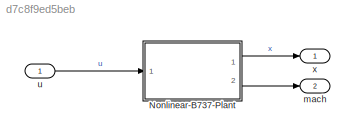
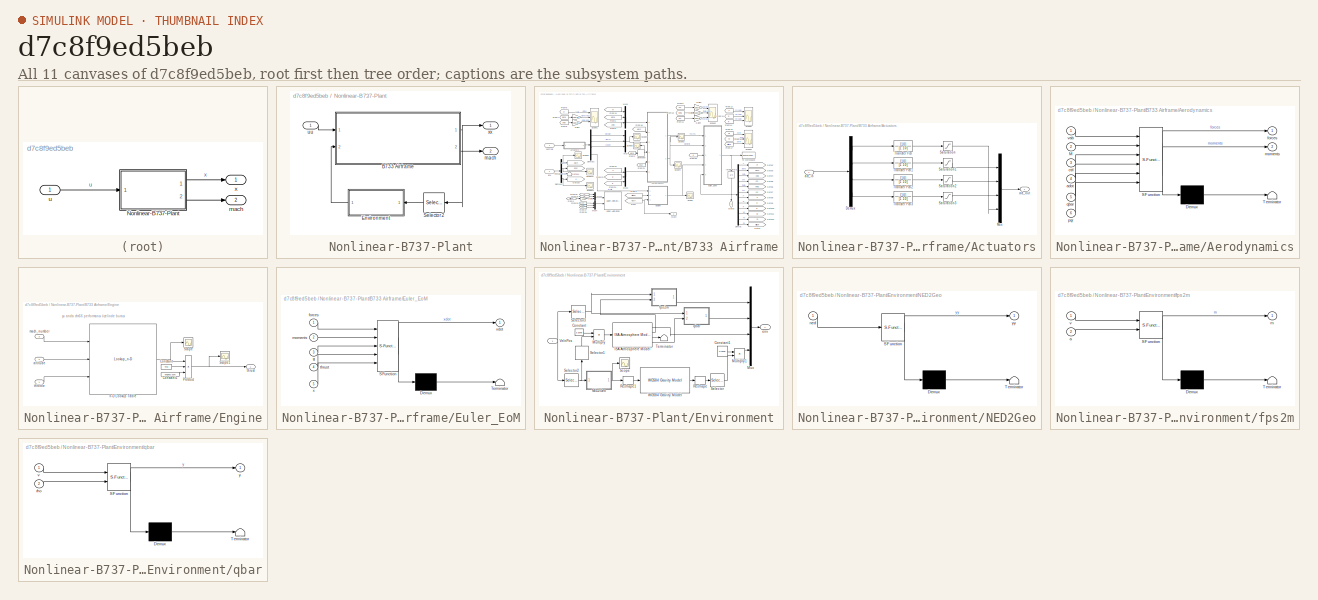
[diagram: thumbnail index - all 11 canvases of the model, root first then tree order]
MODEL slx_d7c8f9ed5beb
KIND model
CONFIG AbsTol = auto
CONFIG EnableMultiTasking = off
CONFIG FixedStep = auto
CONFIG MaxStep = auto
CONFIG MinStep = auto
CONFIG RelTol = 1e-3
CONFIG SampleTimeConstraint = Unconstrained
CONFIG Solver = VariableStepAuto
CONFIG SolverName = VariableStepAuto
CONFIG StartTime = 0.0
CONFIG StopTime = S.simtime
BLOCK [SubSystem] Nonlinear-B737-Plant
  Ports = [1, 2]
  RequestExecContextInheritance = off
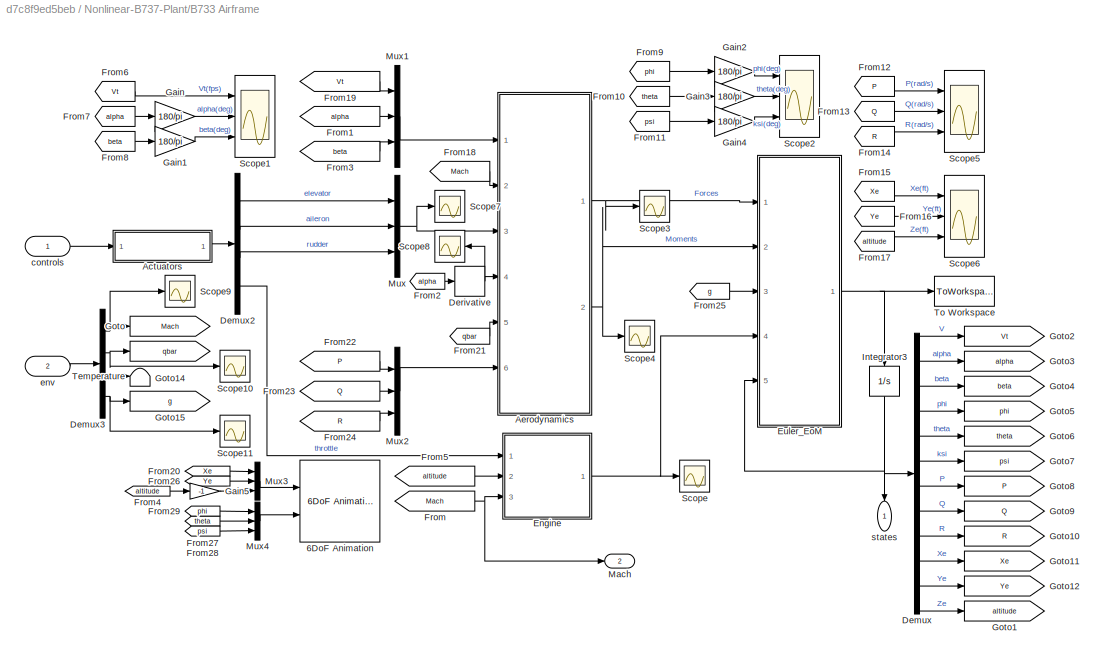
BLOCK [SubSystem] Nonlinear-B737-Plant/B733 Airframe
  Ports = [2, 2]
  RequestExecContextInheritance = off
BLOCK [Reference] Nonlinear-B737-Plant/B733 Airframe/6DoF Animation  REF=aerolibanim/6DoF Animation
  Ports = [2]
  SourceBlock = aerolibanim/6DoF Animation
  SourceProductBaseCode = AE
  SourceProductName = Aerospace Blockset
  SourceType = 6DoF_Animation
BLOCK [SubSystem] Nonlinear-B737-Plant/B733 Airframe/Actuators
  Ports = [1, 1]
  RequestExecContextInheritance = off
BLOCK [Demux] Nonlinear-B737-Plant/B733 Airframe/Actuators/Demux
  DisplayOption = bar
  Ports = [1, 4]
BLOCK [Mux] Nonlinear-B737-Plant/B733 Airframe/Actuators/Mux
  DisplayOption = bar
  Ports = [4, 1]
BLOCK [Saturate] Nonlinear-B737-Plant/B733 Airframe/Actuators/Saturation
  InputPortMap = u0
  LowerLimit = 0
  OutMax = [1]
  OutMin = [0]
  Ports = [1, 1]
  UpperLimit = 1
BLOCK [Saturate] Nonlinear-B737-Plant/B733 Airframe/Actuators/Saturation1
  InputPortMap = u0
  LowerLimit = -0.3
  OutMax = [0.3]
  OutMin = [-0.3]
  Ports = [1, 1]
  UpperLimit = 0.3
BLOCK [Saturate] Nonlinear-B737-Plant/B733 Airframe/Actuators/Saturation2
  InputPortMap = u0
  LowerLimit = -0.35
  OutMax = [0.35]
  OutMin = [-0.35]
  Ports = [1, 1]
  UpperLimit = 0.35
BLOCK [Saturate] Nonlinear-B737-Plant/B733 Airframe/Actuators/Saturation3
  InputPortMap = u0
  LowerLimit = -0.35
  OutMax = [0.35]
  OutMin = [-0.35]
  Ports = [1, 1]
  UpperLimit = 0.35
BLOCK [TransferFcn] Nonlinear-B737-Plant/B733 Airframe/Actuators/Transfer Fcn
  Commented = through
  ContinuousStateAttributes = 'throttle'
  Denominator = [1 10]
  Numerator = [10]
BLOCK [TransferFcn] Nonlinear-B737-Plant/B733 Airframe/Actuators/Transfer Fcn1
  Commented = through
  ContinuousStateAttributes = 'elevator_deflection'
  Denominator = [1 10]
  Numerator = [10]
BLOCK [TransferFcn] Nonlinear-B737-Plant/B733 Airframe/Actuators/Transfer Fcn2
  Commented = through
  ContinuousStateAttributes = 'Aileron_deflection'
  Denominator = [1 10]
  Numerator = [10]
BLOCK [TransferFcn] Nonlinear-B737-Plant/B733 Airframe/Actuators/Transfer Fcn3
  Commented = through
  ContinuousStateAttributes = 'Rudder_deflection'
  Denominator = [1 10]
  Numerator = [10]
BLOCK [Inport] Nonlinear-B737-Plant/B733 Airframe/Actuators/act_in
  IconDisplay = Port number
BLOCK [Outport] Nonlinear-B737-Plant/B733 Airframe/Actuators/act_out
  IconDisplay = Port number
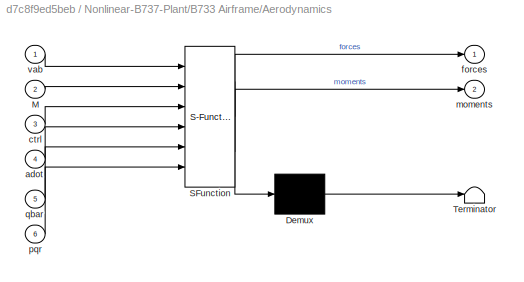
BLOCK [SubSystem] Nonlinear-B737-Plant/B733 Airframe/Aerodynamics
  ErrorFcn = Stateflow.Translate.translate
  PermitHierarchicalResolution = ExplicitOnly
  Ports = [6, 2]
  RequestExecContextInheritance = off
  SFBlockType = MATLAB Function
  TreatAsAtomicUnit = on
BLOCK [Demux] Nonlinear-B737-Plant/B733 Airframe/Aerodynamics/ Demux 
  Outputs = 1
  Ports = [1, 1]
BLOCK [S-Function] Nonlinear-B737-Plant/B733 Airframe/Aerodynamics/ SFunction 
  EnableBusSupport = on
  FunctionName = sf_sfun
  PortCounts = [6 3]
  Ports = [6, 3]
  SFcnIsStateOwnerBlock = off
  SFunctionDeploymentMode = off
  Tag = Stateflow S-Function B733_JSB_R17a 8
BLOCK [Terminator] Nonlinear-B737-Plant/B733 Airframe/Aerodynamics/ Terminator 
BLOCK [Inport] Nonlinear-B737-Plant/B733 Airframe/Aerodynamics/M
  IconDisplay = Port number
  Port = 2
BLOCK [Inport] Nonlinear-B737-Plant/B733 Airframe/Aerodynamics/adot
  IconDisplay = Port number
  Port = 4
BLOCK [Inport] Nonlinear-B737-Plant/B733 Airframe/Aerodynamics/ctrl
  IconDisplay = Port number
  Port = 3
BLOCK [Outport] Nonlinear-B737-Plant/B733 Airframe/Aerodynamics/forces
  IconDisplay = Port number
BLOCK [Outport] Nonlinear-B737-Plant/B733 Airframe/Aerodynamics/moments
  IconDisplay = Port number
  Port = 2
BLOCK [Inport] Nonlinear-B737-Plant/B733 Airframe/Aerodynamics/pqr
  IconDisplay = Port number
  Port = 6
BLOCK [Inport] Nonlinear-B737-Plant/B733 Airframe/Aerodynamics/qbar
  IconDisplay = Port number
  Port = 5
BLOCK [Inport] Nonlinear-B737-Plant/B733 Airframe/Aerodynamics/vab
  IconDisplay = Port number
BLOCK [Demux] Nonlinear-B737-Plant/B733 Airframe/Demux
  DisplayOption = bar
  Outputs = 12
  Ports = [1, 12]
BLOCK [Demux] Nonlinear-B737-Plant/B733 Airframe/Demux2
  DisplayOption = bar
  Ports = [1, 4]
BLOCK [Demux] Nonlinear-B737-Plant/B733 Airframe/Demux3
  DisplayOption = bar
  Ports = [1, 4]
BLOCK [Derivative] Nonlinear-B737-Plant/B733 Airframe/Derivative
BLOCK [SubSystem] Nonlinear-B737-Plant/B733 Airframe/Engine
  Ports = [3, 1]
  RequestExecContextInheritance = off
BLOCK [Constant] Nonlinear-B737-Plant/B733 Airframe/Engine/Constant
  Value = Tmil
BLOCK [Constant] Nonlinear-B737-Plant/B733 Airframe/Engine/Constant1
  Value = engineCount
BLOCK [Product] Nonlinear-B737-Plant/B733 Airframe/Engine/Product
  InputSameDT = off
  Inputs = 3
  OutDataTypeStr = Inherit: Inherit via internal rule
  Ports = [3, 1]
  RndMeth = Floor
  SaturateOnIntegerOverflow = off
BLOCK [Scope] Nonlinear-B737-Plant/B733 Airframe/Engine/Scope
  Floating = off
  NumInputPorts = 1
  Ports = [1]
  ScopeSpecificationString = Simulink.scopes.TimeScopeBlockCfg('CurrentConfiguration', extmgr.ConfigurationSet(extmgr.Configuration('Core','General UI',true),extmgr.Configuration('Core','Source UI',true),extmgr.Configuration('Sources','WiredSimulink',true,'DataLoggingVariableName','ScopeData2'),extmgr.Configuration('Visuals','Time Domain',true,'SerializedDisplays',{struct('MinYLimReal','0.257635','MaxYLimReal','0.257648','YLa...<+1427ch>
BLOCK [Scope] Nonlinear-B737-Plant/B733 Airframe/Engine/Scope1
  Floating = off
  NumInputPorts = 1
  Ports = [1]
  ScopeSpecificationString = Simulink.scopes.TimeScopeBlockCfg('CurrentConfiguration', extmgr.ConfigurationSet(extmgr.Configuration('Core','General UI',true),extmgr.Configuration('Core','Source UI',true),extmgr.Configuration('Sources','WiredSimulink',true,'DataLoggingVariableName','ScopeData1'),extmgr.Configuration('Visuals','Time Domain',true,'SerializedDisplays',{struct('MinYLimReal','10305.40723','MaxYLimReal','10305.90301...<+1442ch>
BLOCK [Inport] Nonlinear-B737-Plant/B733 Airframe/Engine/altitude
  IconDisplay = Port number
  Port = 2
BLOCK [Inport] Nonlinear-B737-Plant/B733 Airframe/Engine/mach_number
  IconDisplay = Port number
  Port = 3
BLOCK [Lookup_n-D] Nonlinear-B737-Plant/B733 Airframe/Engine/n-D Lookup Table
  BreakpointsForDimension1 = [0]
  BreakpointsForDimension1FirstPoint = 0
  BreakpointsForDimension1Spacing = 0.2
  BreakpointsForDimension2 = []
  BreakpointsForDimension2FirstPoint = -10000
  BreakpointsForDimension2Spacing = 10000
  BreakpointsForDimension3 = []
  BreakpointsForDimension3FirstPoint = 0
  BreakpointsSpecification = Even spacing
  InternalRulePriority = Speed
  NumberOfTableDimensions = 3
  Ports = [3, 1]
  RndMeth = Simplest
  Table = engineLUT
BLOCK [Inport] Nonlinear-B737-Plant/B733 Airframe/Engine/throttle
  IconDisplay = Port number
BLOCK [Outport] Nonlinear-B737-Plant/B733 Airframe/Engine/thrust
  IconDisplay = Port number
BLOCK [SubSystem] Nonlinear-B737-Plant/B733 Airframe/Euler_EoM
  ErrorFcn = Stateflow.Translate.translate
  PermitHierarchicalResolution = ExplicitOnly
  Ports = [5, 1]
  RequestExecContextInheritance = off
  SFBlockType = MATLAB Function
  TreatAsAtomicUnit = on
BLOCK [Demux] Nonlinear-B737-Plant/B733 Airframe/Euler_EoM/ Demux 
  Outputs = 1
  Ports = [1, 1]
BLOCK [S-Function] Nonlinear-B737-Plant/B733 Airframe/Euler_EoM/ SFunction 
  EnableBusSupport = on
  FunctionName = sf_sfun
  PortCounts = [5 2]
  Ports = [5, 2]
  SFcnIsStateOwnerBlock = off
  SFunctionDeploymentMode = off
  Tag = Stateflow S-Function B733_JSB_R17a 4
BLOCK [Terminator] Nonlinear-B737-Plant/B733 Airframe/Euler_EoM/ Terminator 
BLOCK [Inport] Nonlinear-B737-Plant/B733 Airframe/Euler_EoM/forces
  IconDisplay = Port number
BLOCK [Inport] Nonlinear-B737-Plant/B733 Airframe/Euler_EoM/g
  IconDisplay = Port number
  Port = 3
BLOCK [Inport] Nonlinear-B737-Plant/B733 Airframe/Euler_EoM/moments
  IconDisplay = Port number
  Port = 2
BLOCK [Inport] Nonlinear-B737-Plant/B733 Airframe/Euler_EoM/thrust
  IconDisplay = Port number
  Port = 4
BLOCK [Inport] Nonlinear-B737-Plant/B733 Airframe/Euler_EoM/x
  IconDisplay = Port number
  Port = 5
BLOCK [Outport] Nonlinear-B737-Plant/B733 Airframe/Euler_EoM/xdot
  IconDisplay = Port number
BLOCK [From] Nonlinear-B737-Plant/B733 Airframe/From
  GotoTag = Mach
BLOCK [From] Nonlinear-B737-Plant/B733 Airframe/From1
  GotoTag = alpha
BLOCK [From] Nonlinear-B737-Plant/B733 Airframe/From10
  GotoTag = theta
BLOCK [From] Nonlinear-B737-Plant/B733 Airframe/From11
  GotoTag = psi
BLOCK [From] Nonlinear-B737-Plant/B733 Airframe/From12
  GotoTag = P
BLOCK [From] Nonlinear-B737-Plant/B733 Airframe/From13
  GotoTag = Q
BLOCK [From] Nonlinear-B737-Plant/B733 Airframe/From14
  GotoTag = R
BLOCK [From] Nonlinear-B737-Plant/B733 Airframe/From15
  GotoTag = Xe
BLOCK [From] Nonlinear-B737-Plant/B733 Airframe/From16
  GotoTag = Ye
BLOCK [From] Nonlinear-B737-Plant/B733 Airframe/From17
  GotoTag = altitude
BLOCK [From] Nonlinear-B737-Plant/B733 Airframe/From18
  GotoTag = Mach
BLOCK [From] Nonlinear-B737-Plant/B733 Airframe/From19
  GotoTag = Vt
BLOCK [From] Nonlinear-B737-Plant/B733 Airframe/From2
  GotoTag = alpha
BLOCK [From] Nonlinear-B737-Plant/B733 Airframe/From20
  GotoTag = Xe
BLOCK [From] Nonlinear-B737-Plant/B733 Airframe/From21
  GotoTag = qbar
BLOCK [From] Nonlinear-B737-Plant/B733 Airframe/From22
  GotoTag = P
BLOCK [From] Nonlinear-B737-Plant/B733 Airframe/From23
  GotoTag = Q
BLOCK [From] Nonlinear-B737-Plant/B733 Airframe/From24
  GotoTag = R
BLOCK [From] Nonlinear-B737-Plant/B733 Airframe/From25
  GotoTag = g
BLOCK [From] Nonlinear-B737-Plant/B733 Airframe/From26
  GotoTag = Ye
BLOCK [From] Nonlinear-B737-Plant/B733 Airframe/From27
  GotoTag = theta
BLOCK [From] Nonlinear-B737-Plant/B733 Airframe/From28
  GotoTag = psi
BLOCK [From] Nonlinear-B737-Plant/B733 Airframe/From29
  GotoTag = phi
BLOCK [From] Nonlinear-B737-Plant/B733 Airframe/From3
  GotoTag = beta
BLOCK [From] Nonlinear-B737-Plant/B733 Airframe/From4
  GotoTag = altitude
BLOCK [From] Nonlinear-B737-Plant/B733 Airframe/From5
  GotoTag = altitude
BLOCK [From] Nonlinear-B737-Plant/B733 Airframe/From6
  GotoTag = Vt
BLOCK [From] Nonlinear-B737-Plant/B733 Airframe/From7
  GotoTag = alpha
BLOCK [From] Nonlinear-B737-Plant/B733 Airframe/From8
  GotoTag = beta
BLOCK [From] Nonlinear-B737-Plant/B733 Airframe/From9
  GotoTag = phi
BLOCK [Gain] Nonlinear-B737-Plant/B733 Airframe/Gain
  Gain = 180/pi
  OutDataTypeStr = Inherit: Inherit via internal rule
  ParamDataTypeStr = Inherit: Inherit via internal rule
  SaturateOnIntegerOverflow = off
BLOCK [Gain] Nonlinear-B737-Plant/B733 Airframe/Gain1
  Gain = 180/pi
  OutDataTypeStr = Inherit: Inherit via internal rule
  ParamDataTypeStr = Inherit: Inherit via internal rule
  SaturateOnIntegerOverflow = off
BLOCK [Gain] Nonlinear-B737-Plant/B733 Airframe/Gain2
  Gain = 180/pi
  OutDataTypeStr = Inherit: Inherit via internal rule
  ParamDataTypeStr = Inherit: Inherit via internal rule
  SaturateOnIntegerOverflow = off
BLOCK [Gain] Nonlinear-B737-Plant/B733 Airframe/Gain3
  Gain = 180/pi
  OutDataTypeStr = Inherit: Inherit via internal rule
  ParamDataTypeStr = Inherit: Inherit via internal rule
  SaturateOnIntegerOverflow = off
BLOCK [Gain] Nonlinear-B737-Plant/B733 Airframe/Gain4
  Gain = 180/pi
  OutDataTypeStr = Inherit: Inherit via internal rule
  ParamDataTypeStr = Inherit: Inherit via internal rule
  SaturateOnIntegerOverflow = off
BLOCK [Gain] Nonlinear-B737-Plant/B733 Airframe/Gain5
  Gain = -1
  OutDataTypeStr = Inherit: Inherit via internal rule
  ParamDataTypeStr = Inherit: Inherit via internal rule
  SaturateOnIntegerOverflow = off
BLOCK [Goto] Nonlinear-B737-Plant/B733 Airframe/Goto
  GotoTag = Mach
BLOCK [Goto] Nonlinear-B737-Plant/B733 Airframe/Goto1
  GotoTag = altitude
BLOCK [Goto] Nonlinear-B737-Plant/B733 Airframe/Goto10
  GotoTag = R
BLOCK [Goto] Nonlinear-B737-Plant/B733 Airframe/Goto11
  GotoTag = Xe
BLOCK [Goto] Nonlinear-B737-Plant/B733 Airframe/Goto12
  GotoTag = Ye
BLOCK [Goto] Nonlinear-B737-Plant/B733 Airframe/Goto14
  GotoTag = qbar
BLOCK [Goto] Nonlinear-B737-Plant/B733 Airframe/Goto15
  GotoTag = g
BLOCK [Goto] Nonlinear-B737-Plant/B733 Airframe/Goto2
  GotoTag = Vt
BLOCK [Goto] Nonlinear-B737-Plant/B733 Airframe/Goto3
  GotoTag = alpha
BLOCK [Goto] Nonlinear-B737-Plant/B733 Airframe/Goto4
  GotoTag = beta
BLOCK [Goto] Nonlinear-B737-Plant/B733 Airframe/Goto5
  GotoTag = phi
BLOCK [Goto] Nonlinear-B737-Plant/B733 Airframe/Goto6
  GotoTag = theta
BLOCK [Goto] Nonlinear-B737-Plant/B733 Airframe/Goto7
  GotoTag = psi
BLOCK [Goto] Nonlinear-B737-Plant/B733 Airframe/Goto8
  GotoTag = P
BLOCK [Goto] Nonlinear-B737-Plant/B733 Airframe/Goto9
  GotoTag = Q
BLOCK [Integrator] Nonlinear-B737-Plant/B733 Airframe/Integrator3
  ContinuousStateAttributes = {'V', 'alpha', 'beta', 'phi', 'theta', 'psi', 'p', 'q', 'r', 'n', 'e', 'd'}
  InitialCondition = S.xu
  Ports = [1, 1]
BLOCK [Outport] Nonlinear-B737-Plant/B733 Airframe/Mach 
  IconDisplay = Port number
  Port = 2
BLOCK [Mux] Nonlinear-B737-Plant/B733 Airframe/Mux
  DisplayOption = bar
  Inputs = 3
  Ports = [3, 1]
BLOCK [Mux] Nonlinear-B737-Plant/B733 Airframe/Mux1
  DisplayOption = bar
  Inputs = 3
  Ports = [3, 1]
BLOCK [Mux] Nonlinear-B737-Plant/B733 Airframe/Mux2
  DisplayOption = bar
  Inputs = 3
  Ports = [3, 1]
BLOCK [Mux] Nonlinear-B737-Plant/B733 Airframe/Mux3
  DisplayOption = bar
  Inputs = 3
  Ports = [3, 1]
BLOCK [Mux] Nonlinear-B737-Plant/B733 Airframe/Mux4
  DisplayOption = bar
  Inputs = 3
  Ports = [3, 1]
BLOCK [Scope] Nonlinear-B737-Plant/B733 Airframe/Scope
  Floating = off
  NumInputPorts = 1
  Ports = [1]
  ScopeSpecificationString = Simulink.scopes.TimeScopeBlockCfg('CurrentConfiguration', extmgr.ConfigurationSet(extmgr.Configuration('Core','General UI',true),extmgr.Configuration('Core','Source UI',true),extmgr.Configuration('Sources','WiredSimulink',true,'DataLoggingVariableName','ScopeData1'),extmgr.Configuration('Visuals','Time Domain',true,'SerializedDisplays',{struct('MinYLimReal','10393.88334','MaxYLimReal','11154.47335...<+1466ch>
BLOCK [Scope] Nonlinear-B737-Plant/B733 Airframe/Scope1
  Floating = off
  NumInputPorts = 3
  Ports = [3]
  ScopeSpecificationString = Simulink.scopes.TimeScopeBlockCfg('CurrentConfiguration', extmgr.ConfigurationSet(extmgr.Configuration('Core','General UI',true),extmgr.Configuration('Core','Source UI',true),extmgr.Configuration('Sources','WiredSimulink',true,'DataLoggingVariableName','ScopeData1'),extmgr.Configuration('Visuals','Time Domain',true,'SerializedDisplays',{struct('MinYLimReal','496.86866','MaxYLimReal','791.85583','Y...<+2813ch>
BLOCK [Scope] Nonlinear-B737-Plant/B733 Airframe/Scope10
  Floating = off
  NumInputPorts = 1
  Ports = [1]
  ScopeSpecificationString = Simulink.scopes.TimeScopeBlockCfg('CurrentConfiguration', extmgr.ConfigurationSet(extmgr.Configuration('Core','General UI',true),extmgr.Configuration('Core','Source UI',true),extmgr.Configuration('Sources','WiredSimulink',true,'DataLoggingVariableName','ScopeData3'),extmgr.Configuration('Visuals','Time Domain',true,'SerializedDisplays',{struct('MinYLimReal','344.50416','MaxYLimReal','371.54763','Y...<+1452ch>
BLOCK [Scope] Nonlinear-B737-Plant/B733 Airframe/Scope11
  Floating = off
  NumInputPorts = 1
  Ports = [1]
  ScopeSpecificationString = Simulink.scopes.TimeScopeBlockCfg('CurrentConfiguration', extmgr.ConfigurationSet(extmgr.Configuration('Core','General UI',true),extmgr.Configuration('Core','Source UI',true),extmgr.Configuration('Sources','WiredSimulink',true,'DataLoggingVariableName','ScopeData4'),extmgr.Configuration('Visuals','Time Domain',true,'SerializedDisplays',{struct('MinYLimReal','9.78167','MaxYLimReal','9.8028','YLabel...<+1432ch>
BLOCK [Scope] Nonlinear-B737-Plant/B733 Airframe/Scope2
  Floating = off
  NumInputPorts = 3
  Ports = [3]
  ScopeSpecificationString = Simulink.scopes.TimeScopeBlockCfg('CurrentConfiguration', extmgr.ConfigurationSet(extmgr.Configuration('Core','General UI',true),extmgr.Configuration('Core','Source UI',true),extmgr.Configuration('Sources','WiredSimulink',true,'DataLoggingVariableName','ScopeData2'),extmgr.Configuration('Visuals','Time Domain',true,'SerializedDisplays',{struct('MinYLimReal','-80.03038','MaxYLimReal','56.32435','YL...<+1468ch>
BLOCK [Scope] Nonlinear-B737-Plant/B733 Airframe/Scope3
  Floating = off
  NumInputPorts = 1
  Ports = [1]
  ScopeSpecificationString = Simulink.scopes.TimeScopeBlockCfg('CurrentConfiguration', extmgr.ConfigurationSet(extmgr.Configuration('Core','General UI',true),extmgr.Configuration('Core','Source UI',true),extmgr.Configuration('Sources','WiredSimulink',true,'DataLoggingVariableName','ScopeData1'),extmgr.Configuration('Visuals','Time Domain',true,'SerializedDisplays',{struct('MinYLimReal','-107447.48448','MaxYLimReal','1889.5317...<+1469ch>
BLOCK [Scope] Nonlinear-B737-Plant/B733 Airframe/Scope4
  Floating = off
  NumInputPorts = 1
  Ports = [1]
  ScopeSpecificationString = Simulink.scopes.TimeScopeBlockCfg('CurrentConfiguration', extmgr.ConfigurationSet(extmgr.Configuration('Core','General UI',true),extmgr.Configuration('Core','Source UI',true),extmgr.Configuration('Sources','WiredSimulink',true,'DataLoggingVariableName','ScopeData1'),extmgr.Configuration('Visuals','Time Domain',true,'SerializedDisplays',{struct('MinYLimReal','-752.56444','MaxYLimReal','1098.90347',...<+1481ch>
BLOCK [Scope] Nonlinear-B737-Plant/B733 Airframe/Scope5
  Floating = off
  NumInputPorts = 3
  Ports = [3]
  ScopeSpecificationString = Simulink.scopes.TimeScopeBlockCfg('CurrentConfiguration', extmgr.ConfigurationSet(extmgr.Configuration('Core','General UI',true),extmgr.Configuration('Core','Source UI',true),extmgr.Configuration('Sources','WiredSimulink',true,'DataLoggingVariableName','ScopeData5'),extmgr.Configuration('Visuals','Time Domain',true,'SerializedDisplays',{struct('MinYLimReal','-0.00038','MaxYLimReal','0.00044','YLab...<+1464ch>
BLOCK [Scope] Nonlinear-B737-Plant/B733 Airframe/Scope6
  Floating = off
  NumInputPorts = 3
  Ports = [3]
  ScopeSpecificationString = Simulink.scopes.TimeScopeBlockCfg('CurrentConfiguration', extmgr.ConfigurationSet(extmgr.Configuration('Core','General UI',true),extmgr.Configuration('Core','Source UI',true),extmgr.Configuration('Sources','WiredSimulink',true,'DataLoggingVariableName','ScopeData6'),extmgr.Configuration('Visuals','Time Domain',true,'SerializedDisplays',{struct('MinYLimReal','-14855.63915','MaxYLimReal','133700.752...<+2777ch>
BLOCK [Scope] Nonlinear-B737-Plant/B733 Airframe/Scope7
  Floating = off
  NumInputPorts = 1
  Ports = [1]
  ScopeSpecificationString = Simulink.scopes.TimeScopeBlockCfg('CurrentConfiguration', extmgr.ConfigurationSet(extmgr.Configuration('Core','General UI',true),extmgr.Configuration('Core','Source UI',true),extmgr.Configuration('Sources','WiredSimulink',true,'DataLoggingVariableName','ScopeData1'),extmgr.Configuration('Visuals','Time Domain',true,'SerializedDisplays',{struct('MinYLimReal','-0.01756','MaxYLimReal','-0.01646','YLa...<+1570ch>
BLOCK [Scope] Nonlinear-B737-Plant/B733 Airframe/Scope8
  Floating = off
  NumInputPorts = 1
  Ports = [1]
  ScopeSpecificationString = Simulink.scopes.TimeScopeBlockCfg('CurrentConfiguration', extmgr.ConfigurationSet(extmgr.Configuration('Core','General UI',true),extmgr.Configuration('Core','Source UI',true),extmgr.Configuration('Sources','WiredSimulink',true,'DataLoggingVariableName','ScopeData1'),extmgr.Configuration('Visuals','Time Domain',true,'SerializedDisplays',{struct('MinYLimReal','-0.00423','MaxYLimReal','0.00503','YLab...<+1440ch>
BLOCK [Scope] Nonlinear-B737-Plant/B733 Airframe/Scope9
  Floating = off
  NumInputPorts = 1
  Ports = [1]
  ScopeSpecificationString = Simulink.scopes.TimeScopeBlockCfg('CurrentConfiguration', extmgr.ConfigurationSet(extmgr.Configuration('Core','General UI',true),extmgr.Configuration('Core','Source UI',true),extmgr.Configuration('Sources','WiredSimulink',true,'DataLoggingVariableName','ScopeData2'),extmgr.Configuration('Visuals','Time Domain',true,'SerializedDisplays',{struct('MinYLimReal','0.57423','MaxYLimReal','0.57917','YLabe...<+1365ch>
BLOCK [Terminator] Nonlinear-B737-Plant/B733 Airframe/Temperature
BLOCK [ToWorkspace] Nonlinear-B737-Plant/B733 Airframe/To Workspace
  FixptAsFi = on
  MaxDataPoints = inf
  Ports = [1]
  SampleTime = -1
  Save2DSignal = 3-D array (concatenate along third dimension)
  VariableName = simout
BLOCK [Inport] Nonlinear-B737-Plant/B733 Airframe/controls
  IconDisplay = Port number
BLOCK [Inport] Nonlinear-B737-Plant/B733 Airframe/env
  IconDisplay = Port number
  Port = 2
BLOCK [Outport] Nonlinear-B737-Plant/B733 Airframe/states
  IconDisplay = Port number
BLOCK [SubSystem] Nonlinear-B737-Plant/Environment
  Ports = [1, 1]
  RequestExecContextInheritance = off
BLOCK [Constant] Nonlinear-B737-Plant/Environment/Constant
  Value = 0.3048
BLOCK [Constant] Nonlinear-B737-Plant/Environment/Constant1
  Value = 0.3048
BLOCK [Reference] Nonlinear-B737-Plant/Environment/ISA Atmosphere Model  REF=aerolibatmos2/ISA Atmosphere Model
  Ports = [1, 4]
  SourceBlock = aerolibatmos2/ISA Atmosphere Model
  SourceProductBaseCode = AE
  SourceProductName = Aerospace Blockset
  SourceType = International Standard Atmosphere Model
BLOCK [Product] Nonlinear-B737-Plant/Environment/Multiply
  InputSameDT = off
  OutDataTypeStr = Inherit: Inherit via internal rule
  Ports = [2, 1]
  RndMeth = Floor
  SaturateOnIntegerOverflow = off
BLOCK [Product] Nonlinear-B737-Plant/Environment/Multiply1
  InputSameDT = off
  OutDataTypeStr = Inherit: Inherit via internal rule
  Ports = [2, 1]
  RndMeth = Floor
  SaturateOnIntegerOverflow = off
BLOCK [Mux] Nonlinear-B737-Plant/Environment/Mux
  DisplayOption = bar
  Ports = [4, 1]
BLOCK [SubSystem] Nonlinear-B737-Plant/Environment/NED2Geo
  ErrorFcn = Stateflow.Translate.translate
  PermitHierarchicalResolution = ExplicitOnly
  Ports = [1, 1]
  RequestExecContextInheritance = off
  SFBlockType = MATLAB Function
  TreatAsAtomicUnit = on
BLOCK [Demux] Nonlinear-B737-Plant/Environment/NED2Geo/ Demux 
  Outputs = 1
  Ports = [1, 1]
BLOCK [S-Function] Nonlinear-B737-Plant/Environment/NED2Geo/ SFunction 
  EnableBusSupport = on
  FunctionName = sf_sfun
  PortCounts = [1 2]
  Ports = [1, 2]
  SFcnIsStateOwnerBlock = off
  SFunctionDeploymentMode = off
  Tag = Stateflow S-Function B733_JSB_R17a 3
BLOCK [Terminator] Nonlinear-B737-Plant/Environment/NED2Geo/ Terminator 
BLOCK [Inport] Nonlinear-B737-Plant/Environment/NED2Geo/ned
  IconDisplay = Port number
BLOCK [Outport] Nonlinear-B737-Plant/Environment/NED2Geo/yy
  IconDisplay = Port number
BLOCK [Reshape] Nonlinear-B737-Plant/Environment/Reshape
  Ports = [1, 1]
BLOCK [Reshape] Nonlinear-B737-Plant/Environment/Reshape1
  OutputDimensionality = Customize
  OutputDimensions = [1,3]
  Ports = [1, 1]
BLOCK [Scope] Nonlinear-B737-Plant/Environment/Scope
  Floating = off
  NumInputPorts = 1
  Ports = [1]
  ScopeSpecificationString = Simulink.scopes.TimeScopeBlockCfg('CurrentConfiguration', extmgr.ConfigurationSet(extmgr.Configuration('Core','General UI',true),extmgr.Configuration('Core','Source UI',true),extmgr.Configuration('Sources','WiredSimulink',true,'DataLoggingVariableName','ScopeData5'),extmgr.Configuration('Visuals','Time Domain',true,'SerializedDisplays',{struct('MinYLimReal','40.04841','MaxYLimReal','42.15089','YLa...<+1444ch>
BLOCK [Selector] Nonlinear-B737-Plant/Environment/Selector
  IndexOptions = Index vector (dialog)
  Indices = [3]
  InputPortWidth = 3
  OutputSizes = 1
  Ports = [1, 1]
BLOCK [Selector] Nonlinear-B737-Plant/Environment/Selector1
  IndexOptions = Index vector (dialog)
  Indices = [3]
  InputPortWidth = 3
  OutputSizes = 1
  Ports = [1, 1]
BLOCK [Selector] Nonlinear-B737-Plant/Environment/Selector2
  IndexOptions = Index vector (dialog)
  Indices = [2 3 4]
  InputPortWidth = 4
  OutputSizes = 1
  Ports = [1, 1]
BLOCK [Selector] Nonlinear-B737-Plant/Environment/Selector3
  IndexOptions = Index vector (dialog)
  Indices = [1]
  InputPortWidth = 4
  OutputSizes = 1
  Ports = [1, 1]
BLOCK [Terminator] Nonlinear-B737-Plant/Environment/Terminator
BLOCK [Inport] Nonlinear-B737-Plant/Environment/VelnPos
  IconDisplay = Port number
BLOCK [Reference] Nonlinear-B737-Plant/Environment/WGS84 Gravity Model    REF=aerolibgravity2/WGS84 Gravity Model 
  Ports = [1, 1]
  SourceBlock = aerolibgravity2/WGS84 Gravity Model
  SourceProductBaseCode = AE
  SourceProductName = Aerospace Blockset
  SourceType = WGS84 Gravity Model 3D
  units = English
BLOCK [Outport] Nonlinear-B737-Plant/Environment/env
  IconDisplay = Port number
BLOCK [SubSystem] Nonlinear-B737-Plant/Environment/fps2m
  ErrorFcn = Stateflow.Translate.translate
  PermitHierarchicalResolution = ExplicitOnly
  Ports = [2, 1]
  RequestExecContextInheritance = off
  SFBlockType = MATLAB Function
  TreatAsAtomicUnit = on
BLOCK [Demux] Nonlinear-B737-Plant/Environment/fps2m/ Demux 
  Outputs = 1
  Ports = [1, 1]
BLOCK [S-Function] Nonlinear-B737-Plant/Environment/fps2m/ SFunction 
  EnableBusSupport = on
  FunctionName = sf_sfun
  PortCounts = [2 2]
  Ports = [2, 2]
  SFcnIsStateOwnerBlock = off
  SFunctionDeploymentMode = off
  Tag = Stateflow S-Function B733_JSB_R17a 5
BLOCK [Terminator] Nonlinear-B737-Plant/Environment/fps2m/ Terminator 
BLOCK [Inport] Nonlinear-B737-Plant/Environment/fps2m/a
  IconDisplay = Port number
  Port = 2
BLOCK [Outport] Nonlinear-B737-Plant/Environment/fps2m/m
  IconDisplay = Port number
BLOCK [Inport] Nonlinear-B737-Plant/Environment/fps2m/v
  IconDisplay = Port number
BLOCK [SubSystem] Nonlinear-B737-Plant/Environment/qbar
  ErrorFcn = Stateflow.Translate.translate
  PermitHierarchicalResolution = ExplicitOnly
  Ports = [2, 1]
  RequestExecContextInheritance = off
  SFBlockType = MATLAB Function
  TreatAsAtomicUnit = on
BLOCK [Demux] Nonlinear-B737-Plant/Environment/qbar/ Demux 
  Outputs = 1
  Ports = [1, 1]
BLOCK [S-Function] Nonlinear-B737-Plant/Environment/qbar/ SFunction 
  EnableBusSupport = on
  FunctionName = sf_sfun
  PortCounts = [2 2]
  Ports = [2, 2]
  SFcnIsStateOwnerBlock = off
  SFunctionDeploymentMode = off
  Tag = Stateflow S-Function B733_JSB_R17a 6
BLOCK [Terminator] Nonlinear-B737-Plant/Environment/qbar/ Terminator 
BLOCK [Inport] Nonlinear-B737-Plant/Environment/qbar/rho
  IconDisplay = Port number
  Port = 2
BLOCK [Inport] Nonlinear-B737-Plant/Environment/qbar/v
  IconDisplay = Port number
BLOCK [Outport] Nonlinear-B737-Plant/Environment/qbar/y
  IconDisplay = Port number
BLOCK [Selector] Nonlinear-B737-Plant/Selector2
  IndexOptions = Index vector (dialog)
  Indices = [1 10 11 12]
  InputPortWidth = 12
  OutputSizes = 1
  Ports = [1, 1]
BLOCK [Outport] Nonlinear-B737-Plant/mach
  IconDisplay = Port number
  Port = 2
BLOCK [Inport] Nonlinear-B737-Plant/uu
  IconDisplay = Port number
BLOCK [Outport] Nonlinear-B737-Plant/xx
  IconDisplay = Port number
BLOCK [Outport] mach
  IconDisplay = Port number
  Port = 2
BLOCK [Inport] u
  IconDisplay = Port number
BLOCK [Outport] x
  IconDisplay = Port number
ANNOTATION Nonlinear-B737-Plant/B733 Airframe/Engine: şu anda cfm56 performansı özelinde burası
LINE Nonlinear-B737-Plant/B733 Airframe/Actuators/Demux:1 -> Nonlinear-B737-Plant/B733 Airframe/Actuators/Transfer Fcn:1
LINE Nonlinear-B737-Plant/B733 Airframe/Actuators/Demux:2 -> Nonlinear-B737-Plant/B733 Airframe/Actuators/Transfer Fcn1:1
LINE Nonlinear-B737-Plant/B733 Airframe/Actuators/Demux:3 -> Nonlinear-B737-Plant/B733 Airframe/Actuators/Transfer Fcn2:1
LINE Nonlinear-B737-Plant/B733 Airframe/Actuators/Demux:4 -> Nonlinear-B737-Plant/B733 Airframe/Actuators/Transfer Fcn3:1
LINE Nonlinear-B737-Plant/B733 Airframe/Actuators/Mux:1 -> Nonlinear-B737-Plant/B733 Airframe/Actuators/act_out:1
LINE Nonlinear-B737-Plant/B733 Airframe/Actuators/Saturation1:1 -> Nonlinear-B737-Plant/B733 Airframe/Actuators/Mux:1
LINE Nonlinear-B737-Plant/B733 Airframe/Actuators/Saturation2:1 -> Nonlinear-B737-Plant/B733 Airframe/Actuators/Mux:2
LINE Nonlinear-B737-Plant/B733 Airframe/Actuators/Saturation3:1 -> Nonlinear-B737-Plant/B733 Airframe/Actuators/Mux:3
LINE Nonlinear-B737-Plant/B733 Airframe/Actuators/Saturation:1 -> Nonlinear-B737-Plant/B733 Airframe/Actuators/Mux:4
LINE Nonlinear-B737-Plant/B733 Airframe/Actuators/Transfer Fcn1:1 -> Nonlinear-B737-Plant/B733 Airframe/Actuators/Saturation1:1
LINE Nonlinear-B737-Plant/B733 Airframe/Actuators/Transfer Fcn2:1 -> Nonlinear-B737-Plant/B733 Airframe/Actuators/Saturation2:1
LINE Nonlinear-B737-Plant/B733 Airframe/Actuators/Transfer Fcn3:1 -> Nonlinear-B737-Plant/B733 Airframe/Actuators/Saturation3:1
LINE Nonlinear-B737-Plant/B733 Airframe/Actuators/Transfer Fcn:1 -> Nonlinear-B737-Plant/B733 Airframe/Actuators/Saturation:1
LINE Nonlinear-B737-Plant/B733 Airframe/Actuators/act_in:1 -> Nonlinear-B737-Plant/B733 Airframe/Actuators/Demux:1
LINE Nonlinear-B737-Plant/B733 Airframe/Actuators:1 -> Nonlinear-B737-Plant/B733 Airframe/Demux2:1
NET Nonlinear-B737-Plant/B733 Airframe/Aerodynamics:1 -> Nonlinear-B737-Plant/B733 Airframe/Euler_EoM:1, Nonlinear-B737-Plant/B733 Airframe/Scope3:1
NET Nonlinear-B737-Plant/B733 Airframe/Aerodynamics:2 -> Nonlinear-B737-Plant/B733 Airframe/Euler_EoM:2, Nonlinear-B737-Plant/B733 Airframe/Scope4:1
LINE Nonlinear-B737-Plant/B733 Airframe/Demux2:1 -> Nonlinear-B737-Plant/B733 Airframe/Mux:1
LINE Nonlinear-B737-Plant/B733 Airframe/Demux2:2 -> Nonlinear-B737-Plant/B733 Airframe/Mux:2
LINE Nonlinear-B737-Plant/B733 Airframe/Demux2:3 -> Nonlinear-B737-Plant/B733 Airframe/Mux:3
LINE Nonlinear-B737-Plant/B733 Airframe/Demux2:4 -> Nonlinear-B737-Plant/B733 Airframe/Engine:1
NET Nonlinear-B737-Plant/B733 Airframe/Demux3:1 -> Nonlinear-B737-Plant/B733 Airframe/Goto:1, Nonlinear-B737-Plant/B733 Airframe/Scope9:1
NET Nonlinear-B737-Plant/B733 Airframe/Demux3:2 -> Nonlinear-B737-Plant/B733 Airframe/Goto14:1, Nonlinear-B737-Plant/B733 Airframe/Scope10:1
LINE Nonlinear-B737-Plant/B733 Airframe/Demux3:3 -> Nonlinear-B737-Plant/B733 Airframe/Temperature:1
NET Nonlinear-B737-Plant/B733 Airframe/Demux3:4 -> Nonlinear-B737-Plant/B733 Airframe/Goto15:1, Nonlinear-B737-Plant/B733 Airframe/Scope11:1
LINE Nonlinear-B737-Plant/B733 Airframe/Demux:1 -> Nonlinear-B737-Plant/B733 Airframe/Goto2:1
LINE Nonlinear-B737-Plant/B733 Airframe/Demux:10 -> Nonlinear-B737-Plant/B733 Airframe/Goto11:1
LINE Nonlinear-B737-Plant/B733 Airframe/Demux:11 -> Nonlinear-B737-Plant/B733 Airframe/Goto12:1
LINE Nonlinear-B737-Plant/B733 Airframe/Demux:12 -> Nonlinear-B737-Plant/B733 Airframe/Goto1:1
LINE Nonlinear-B737-Plant/B733 Airframe/Demux:2 -> Nonlinear-B737-Plant/B733 Airframe/Goto3:1
LINE Nonlinear-B737-Plant/B733 Airframe/Demux:3 -> Nonlinear-B737-Plant/B733 Airframe/Goto4:1
LINE Nonlinear-B737-Plant/B733 Airframe/Demux:4 -> Nonlinear-B737-Plant/B733 Airframe/Goto5:1
LINE Nonlinear-B737-Plant/B733 Airframe/Demux:5 -> Nonlinear-B737-Plant/B733 Airframe/Goto6:1
LINE Nonlinear-B737-Plant/B733 Airframe/Demux:6 -> Nonlinear-B737-Plant/B733 Airframe/Goto7:1
LINE Nonlinear-B737-Plant/B733 Airframe/Demux:7 -> Nonlinear-B737-Plant/B733 Airframe/Goto8:1
LINE Nonlinear-B737-Plant/B733 Airframe/Demux:8 -> Nonlinear-B737-Plant/B733 Airframe/Goto9:1
LINE Nonlinear-B737-Plant/B733 Airframe/Demux:9 -> Nonlinear-B737-Plant/B733 Airframe/Goto10:1
NET Nonlinear-B737-Plant/B733 Airframe/Derivative:1 -> Nonlinear-B737-Plant/B733 Airframe/Aerodynamics:4, Nonlinear-B737-Plant/B733 Airframe/Scope8:1
LINE Nonlinear-B737-Plant/B733 Airframe/Engine/Constant1:1 -> Nonlinear-B737-Plant/B733 Airframe/Engine/Product:3
LINE Nonlinear-B737-Plant/B733 Airframe/Engine/Constant:1 -> Nonlinear-B737-Plant/B733 Airframe/Engine/Product:2
NET Nonlinear-B737-Plant/B733 Airframe/Engine/Product:1 -> Nonlinear-B737-Plant/B733 Airframe/Engine/Scope1:1, Nonlinear-B737-Plant/B733 Airframe/Engine/thrust:1
LINE Nonlinear-B737-Plant/B733 Airframe/Engine/altitude:1 -> Nonlinear-B737-Plant/B733 Airframe/Engine/n-D Lookup Table:2
LINE Nonlinear-B737-Plant/B733 Airframe/Engine/mach_number:1 -> Nonlinear-B737-Plant/B733 Airframe/Engine/n-D Lookup Table:1
NET Nonlinear-B737-Plant/B733 Airframe/Engine/n-D Lookup Table:1 -> Nonlinear-B737-Plant/B733 Airframe/Engine/Product:1, Nonlinear-B737-Plant/B733 Airframe/Engine/Scope:1
LINE Nonlinear-B737-Plant/B733 Airframe/Engine/throttle:1 -> Nonlinear-B737-Plant/B733 Airframe/Engine/n-D Lookup Table:3
NET Nonlinear-B737-Plant/B733 Airframe/Engine:1 -> Nonlinear-B737-Plant/B733 Airframe/Euler_EoM:4, Nonlinear-B737-Plant/B733 Airframe/Scope:1
NET Nonlinear-B737-Plant/B733 Airframe/Euler_EoM:1 -> Nonlinear-B737-Plant/B733 Airframe/Integrator3:1, Nonlinear-B737-Plant/B733 Airframe/To Workspace:1
LINE Nonlinear-B737-Plant/B733 Airframe/From10:1 -> Nonlinear-B737-Plant/B733 Airframe/Gain3:1
LINE Nonlinear-B737-Plant/B733 Airframe/From11:1 -> Nonlinear-B737-Plant/B733 Airframe/Gain4:1
LINE Nonlinear-B737-Plant/B733 Airframe/From12:1 -> Nonlinear-B737-Plant/B733 Airframe/Scope5:1
LINE Nonlinear-B737-Plant/B733 Airframe/From13:1 -> Nonlinear-B737-Plant/B733 Airframe/Scope5:2
LINE Nonlinear-B737-Plant/B733 Airframe/From14:1 -> Nonlinear-B737-Plant/B733 Airframe/Scope5:3
LINE Nonlinear-B737-Plant/B733 Airframe/From15:1 -> Nonlinear-B737-Plant/B733 Airframe/Scope6:1
LINE Nonlinear-B737-Plant/B733 Airframe/From16:1 -> Nonlinear-B737-Plant/B733 Airframe/Scope6:2
LINE Nonlinear-B737-Plant/B733 Airframe/From17:1 -> Nonlinear-B737-Plant/B733 Airframe/Scope6:3
LINE Nonlinear-B737-Plant/B733 Airframe/From18:1 -> Nonlinear-B737-Plant/B733 Airframe/Aerodynamics:2
LINE Nonlinear-B737-Plant/B733 Airframe/From19:1 -> Nonlinear-B737-Plant/B733 Airframe/Mux1:1
LINE Nonlinear-B737-Plant/B733 Airframe/From1:1 -> Nonlinear-B737-Plant/B733 Airframe/Mux1:2
LINE Nonlinear-B737-Plant/B733 Airframe/From20:1 -> Nonlinear-B737-Plant/B733 Airframe/Mux3:1
LINE Nonlinear-B737-Plant/B733 Airframe/From21:1 -> Nonlinear-B737-Plant/B733 Airframe/Aerodynamics:5
LINE Nonlinear-B737-Plant/B733 Airframe/From22:1 -> Nonlinear-B737-Plant/B733 Airframe/Mux2:1
LINE Nonlinear-B737-Plant/B733 Airframe/From23:1 -> Nonlinear-B737-Plant/B733 Airframe/Mux2:2
LINE Nonlinear-B737-Plant/B733 Airframe/From24:1 -> Nonlinear-B737-Plant/B733 Airframe/Mux2:3
LINE Nonlinear-B737-Plant/B733 Airframe/From25:1 -> Nonlinear-B737-Plant/B733 Airframe/Euler_EoM:3
LINE Nonlinear-B737-Plant/B733 Airframe/From26:1 -> Nonlinear-B737-Plant/B733 Airframe/Mux3:2
LINE Nonlinear-B737-Plant/B733 Airframe/From27:1 -> Nonlinear-B737-Plant/B733 Airframe/Mux4:2
LINE Nonlinear-B737-Plant/B733 Airframe/From28:1 -> Nonlinear-B737-Plant/B733 Airframe/Mux4:3
LINE Nonlinear-B737-Plant/B733 Airframe/From29:1 -> Nonlinear-B737-Plant/B733 Airframe/Mux4:1
LINE Nonlinear-B737-Plant/B733 Airframe/From2:1 -> Nonlinear-B737-Plant/B733 Airframe/Derivative:1
LINE Nonlinear-B737-Plant/B733 Airframe/From3:1 -> Nonlinear-B737-Plant/B733 Airframe/Mux1:3
LINE Nonlinear-B737-Plant/B733 Airframe/From4:1 -> Nonlinear-B737-Plant/B733 Airframe/Gain5:1
LINE Nonlinear-B737-Plant/B733 Airframe/From5:1 -> Nonlinear-B737-Plant/B733 Airframe/Engine:2
LINE Nonlinear-B737-Plant/B733 Airframe/From6:1 -> Nonlinear-B737-Plant/B733 Airframe/Scope1:1
LINE Nonlinear-B737-Plant/B733 Airframe/From7:1 -> Nonlinear-B737-Plant/B733 Airframe/Gain:1
LINE Nonlinear-B737-Plant/B733 Airframe/From8:1 -> Nonlinear-B737-Plant/B733 Airframe/Gain1:1
LINE Nonlinear-B737-Plant/B733 Airframe/From9:1 -> Nonlinear-B737-Plant/B733 Airframe/Gain2:1
NET Nonlinear-B737-Plant/B733 Airframe/From:1 -> Nonlinear-B737-Plant/B733 Airframe/Engine:3, Nonlinear-B737-Plant/B733 Airframe/Mach :1
LINE Nonlinear-B737-Plant/B733 Airframe/Gain1:1 -> Nonlinear-B737-Plant/B733 Airframe/Scope1:3
LINE Nonlinear-B737-Plant/B733 Airframe/Gain2:1 -> Nonlinear-B737-Plant/B733 Airframe/Scope2:1
LINE Nonlinear-B737-Plant/B733 Airframe/Gain3:1 -> Nonlinear-B737-Plant/B733 Airframe/Scope2:2
LINE Nonlinear-B737-Plant/B733 Airframe/Gain4:1 -> Nonlinear-B737-Plant/B733 Airframe/Scope2:3
LINE Nonlinear-B737-Plant/B733 Airframe/Gain5:1 -> Nonlinear-B737-Plant/B733 Airframe/Mux3:3
LINE Nonlinear-B737-Plant/B733 Airframe/Gain:1 -> Nonlinear-B737-Plant/B733 Airframe/Scope1:2
NET Nonlinear-B737-Plant/B733 Airframe/Integrator3:1 -> Nonlinear-B737-Plant/B733 Airframe/Demux:1, Nonlinear-B737-Plant/B733 Airframe/Euler_EoM:5, Nonlinear-B737-Plant/B733 Airframe/states:1
LINE Nonlinear-B737-Plant/B733 Airframe/Mux1:1 -> Nonlinear-B737-Plant/B733 Airframe/Aerodynamics:1
LINE Nonlinear-B737-Plant/B733 Airframe/Mux2:1 -> Nonlinear-B737-Plant/B733 Airframe/Aerodynamics:6
LINE Nonlinear-B737-Plant/B733 Airframe/Mux3:1 -> Nonlinear-B737-Plant/B733 Airframe/6DoF Animation:1
LINE Nonlinear-B737-Plant/B733 Airframe/Mux4:1 -> Nonlinear-B737-Plant/B733 Airframe/6DoF Animation:2
NET Nonlinear-B737-Plant/B733 Airframe/Mux:1 -> Nonlinear-B737-Plant/B733 Airframe/Aerodynamics:3, Nonlinear-B737-Plant/B733 Airframe/Scope7:1
LINE Nonlinear-B737-Plant/B733 Airframe/controls:1 -> Nonlinear-B737-Plant/B733 Airframe/Actuators:1
LINE Nonlinear-B737-Plant/B733 Airframe/env:1 -> Nonlinear-B737-Plant/B733 Airframe/Demux3:1
NET Nonlinear-B737-Plant/B733 Airframe:1 -> Nonlinear-B737-Plant/Selector2:1, Nonlinear-B737-Plant/xx:1
LINE Nonlinear-B737-Plant/B733 Airframe:2 -> Nonlinear-B737-Plant/mach:1
LINE Nonlinear-B737-Plant/Environment/Constant1:1 -> Nonlinear-B737-Plant/Environment/Multiply1:1
LINE Nonlinear-B737-Plant/Environment/Constant:1 -> Nonlinear-B737-Plant/Environment/Multiply:1
LINE Nonlinear-B737-Plant/Environment/ISA Atmosphere Model:1 -> Nonlinear-B737-Plant/Environment/Mux:3
LINE Nonlinear-B737-Plant/Environment/ISA Atmosphere Model:2 -> Nonlinear-B737-Plant/Environment/fps2m:2
LINE Nonlinear-B737-Plant/Environment/ISA Atmosphere Model:3 -> Nonlinear-B737-Plant/Environment/Terminator:1
LINE Nonlinear-B737-Plant/Environment/ISA Atmosphere Model:4 -> Nonlinear-B737-Plant/Environment/qbar:2
LINE Nonlinear-B737-Plant/Environment/Multiply1:1 -> Nonlinear-B737-Plant/Environment/Mux:4
LINE Nonlinear-B737-Plant/Environment/Multiply:1 -> Nonlinear-B737-Plant/Environment/ISA Atmosphere Model:1
LINE Nonlinear-B737-Plant/Environment/Mux:1 -> Nonlinear-B737-Plant/Environment/env:1
NET Nonlinear-B737-Plant/Environment/NED2Geo:1 -> Nonlinear-B737-Plant/Environment/Reshape1:1, Nonlinear-B737-Plant/Environment/Scope:1
LINE Nonlinear-B737-Plant/Environment/Reshape1:1 -> Nonlinear-B737-Plant/Environment/WGS84 Gravity Model  :1
LINE Nonlinear-B737-Plant/Environment/Reshape:1 -> Nonlinear-B737-Plant/Environment/Selector:1
LINE Nonlinear-B737-Plant/Environment/Selector1:1 -> Nonlinear-B737-Plant/Environment/Multiply:2
NET Nonlinear-B737-Plant/Environment/Selector2:1 -> Nonlinear-B737-Plant/Environment/NED2Geo:1, Nonlinear-B737-Plant/Environment/Selector1:1
NET Nonlinear-B737-Plant/Environment/Selector3:1 -> Nonlinear-B737-Plant/Environment/fps2m:1, Nonlinear-B737-Plant/Environment/qbar:1
LINE Nonlinear-B737-Plant/Environment/Selector:1 -> Nonlinear-B737-Plant/Environment/Multiply1:2
NET Nonlinear-B737-Plant/Environment/VelnPos:1 -> Nonlinear-B737-Plant/Environment/Selector2:1, Nonlinear-B737-Plant/Environment/Selector3:1
LINE Nonlinear-B737-Plant/Environment/WGS84 Gravity Model  :1 -> Nonlinear-B737-Plant/Environment/Reshape:1
LINE Nonlinear-B737-Plant/Environment/fps2m:1 -> Nonlinear-B737-Plant/Environment/Mux:1
LINE Nonlinear-B737-Plant/Environment/qbar:1 -> Nonlinear-B737-Plant/Environment/Mux:2
LINE Nonlinear-B737-Plant/Environment:1 -> Nonlinear-B737-Plant/B733 Airframe:2
LINE Nonlinear-B737-Plant/Selector2:1 -> Nonlinear-B737-Plant/Environment:1
LINE Nonlinear-B737-Plant/uu:1 -> Nonlinear-B737-Plant/B733 Airframe:1
LINE Nonlinear-B737-Plant:1 -> x:1
LINE Nonlinear-B737-Plant:2 -> mach:1
LINE u:1 -> Nonlinear-B737-Plant:1
note: NET lines group one-source signal fan-out (src -> all destinations, sorted); 1:1 wires keep LINE
CHART Nonlinear-B737-Plant/Environment/NED2Geo states=1 transitions=1
  STATE_LABEL 'eML_blk_kernel()'
  STATE_LABEL "SCRIPT:\nfunction yy = fcn(ned)\nyy = [0,0,0];\ncoder.extrinsic('ned2geodetic'); \ncoder.extrinsic('wgs84Ellipsoid'); \nellipsoid = wgs84Ellipsoid;\n[lat,lon,h] = ned2geodetic(ned(1),ned(2),-ned(3),40.976111, 28.814167,0,ellipsoid);\nyy = [lat,lon,h];\nend"
CHART Nonlinear-B737-Plant/B733 Airframe/Euler_EoM states=1 transitions=1
  STATE_LABEL 'eML_blk_kernel()'
  STATE_LABEL 'SCRIPT:\nfunction xdot = Zeom_fcn(forces,moments, g, thrust,x)\nglobal S\nxdot = zeros(12,1);\n\n%TODO fuel to be added\nweight = 83000; %Weight of Aircraft (lb)\ngd     = g*3.28084; %Gravitational Acceleration\nm      = weight/gd; %Mass(slug)\n\nHeng  = 0;\n\nJxx = 562000;\nJyy = 1.473e+06;\nJzz = 1.894e+06;\nJxz = 8000;\n\nVt    = x(1);\nalpha = x(2);\nbeta  = x(3);\nphi   = x(4);\ntheta = x(5);\nksi   = x(6);\nP     ...<+1496ch>'
CHART Nonlinear-B737-Plant/Environment/fps2m states=1 transitions=1
  STATE_LABEL 'eML_blk_kernel()'
  STATE_LABEL 'SCRIPT:\nfunction m = fps2m(v,a)\nm= v/(a*3.28084);\nend'
CHART Nonlinear-B737-Plant/Environment/qbar states=1 transitions=1
  STATE_LABEL 'eML_blk_kernel()'
  STATE_LABEL 'SCRIPT:\nfunction y = qbar(v, rho)\ny = 0.5*rho*v*v*0.0019577143;\n'
CHART Nonlinear-B737-Plant/B733 Airframe/Aerodynamics states=1 transitions=1
  STATE_LABEL 'eML_blk_kernel()'
  STATE_LABEL "SCRIPT:\nfunction [forces, moments] = aeromodel(vab, M, ctrl,  adot, qbar, pqr)\nforces = zeros(1,3);\nmoments = zeros(1,3);\ncoder.extrinsic('Zaero_fn'); \n[forces, moments] = Zaero_fn(vab(1), M, ctrl(1), ctrl(2), ctrl(3), vab(2), vab(3), adot, qbar, pqr(1), pqr(2), pqr(3));\nend"
